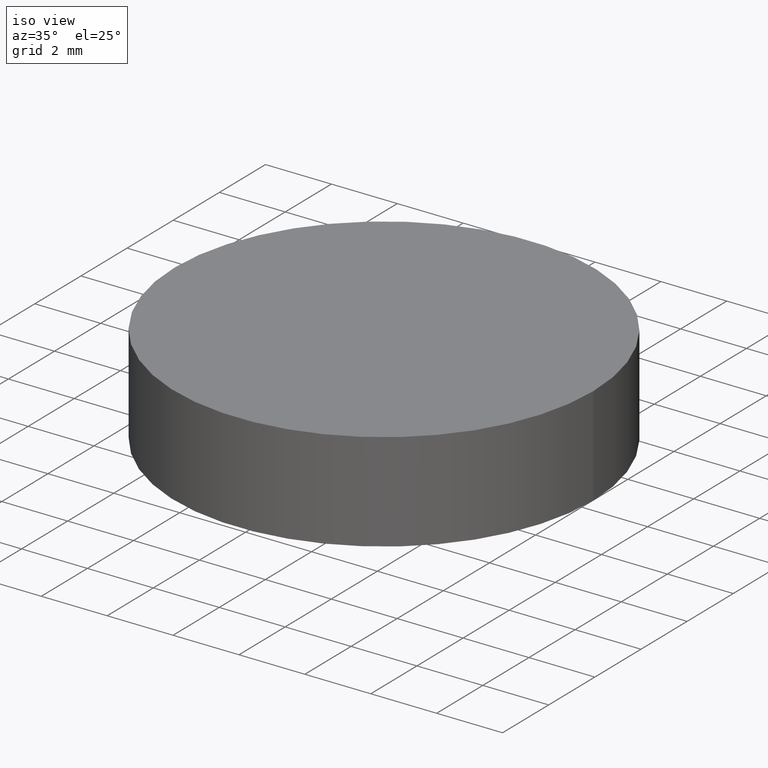
[diagram: clean part render]
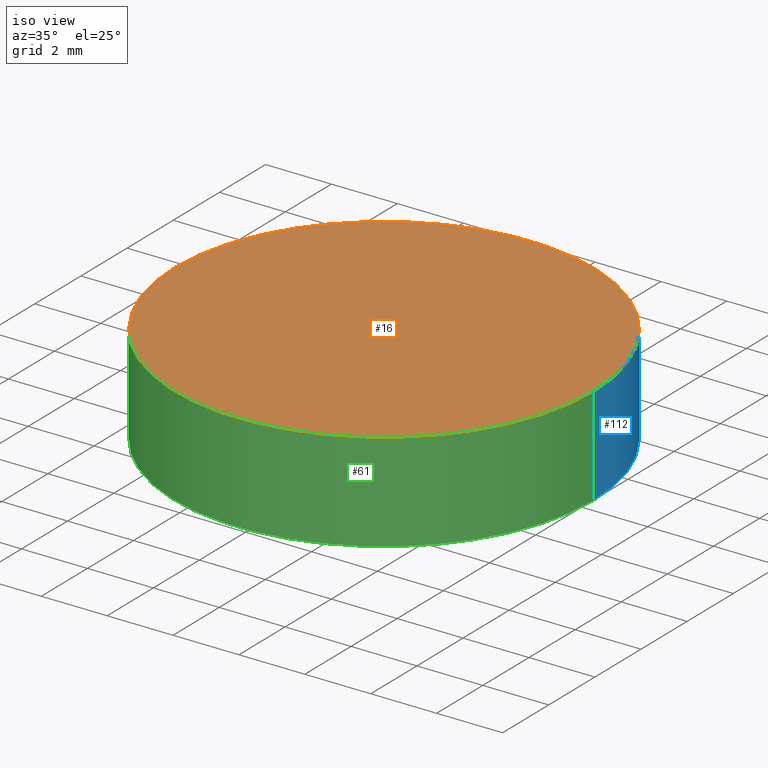
[diagram: same view with three faces highlighted in distinct colors, each labeled with its STEP entity id]
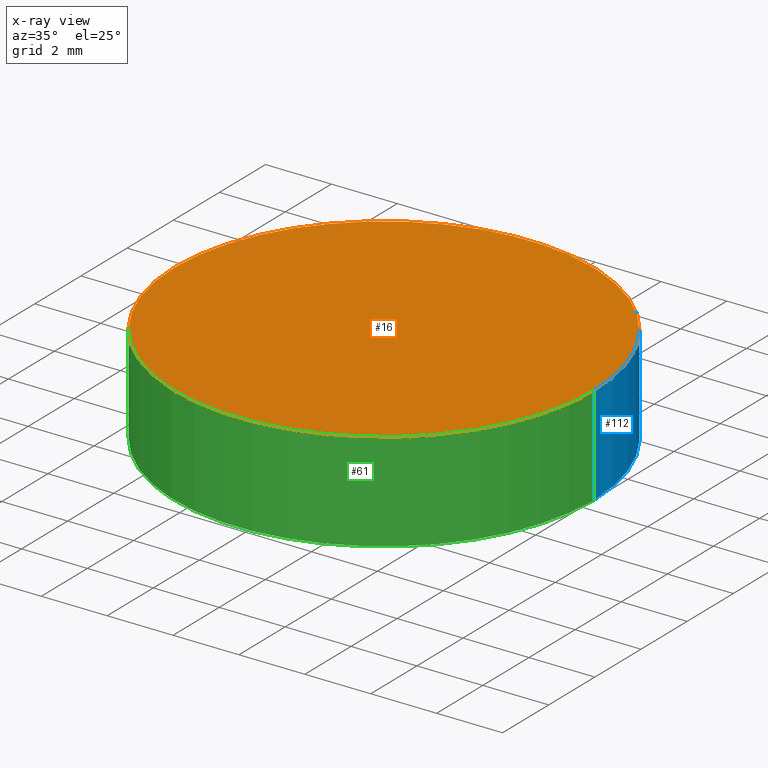
[diagram: x-ray of the same camera — body ghosted, the three highlighted faces saturated]
A machine part, iso view with three faces highlighted in distinct colors.
The next image is the same camera in x-ray (body ghosted, the three faces saturated) — at least one of them is partly hidden behind the body in this view.
Their STEP definitions:

[orange] entity #16 — the highlighted planar face has unit normal (0, 0, 1).
#8 = FACE_OUTER_BOUND ( 'NONE', #101, .T. ) ;
#12 = ORIENTED_EDGE ( 'NONE', *, *, #19, .T. ) ;
#16 = ADVANCED_FACE ( 'NONE', ( #8 ), #82, .T. ) ;
#19 = EDGE_CURVE ( 'NONE', #41, #75, #81, .T. ) ;
#32 = CIRCLE ( 'NONE', #119, 6.349999999999999600 ) ;
#41 = VERTEX_POINT ( 'NONE', #49 ) ;
#44 = DIRECTION ( 'NONE',  ( 1.000000000000000000, 0.0000000000000000000, 0.0000000000000000000 ) ) ;
#48 = AXIS2_PLACEMENT_3D ( 'NONE', #108, #93, #59 ) ;
#49 = CARTESIAN_POINT ( 'NONE',  ( 6.349999999999999600, 7.776507174585692200E-016, 3.000000000000000000 ) ) ;
#59 = DIRECTION ( 'NONE',  ( 1.000000000000000000, 0.0000000000000000000, -0.0000000000000000000 ) ) ;
#64 = AXIS2_PLACEMENT_3D ( 'NONE', #125, #91, #44 ) ;
#75 = VERTEX_POINT ( 'NONE', #109 ) ;
#76 = ORIENTED_EDGE ( 'NONE', *, *, #86, .T. ) ;
#81 = CIRCLE ( 'NONE', #64, 6.349999999999999600 ) ;
#82 = PLANE ( 'NONE',  #48 ) ;
#86 = EDGE_CURVE ( 'NONE', #75, #41, #32, .T. ) ;
#91 = DIRECTION ( 'NONE',  ( 0.0000000000000000000, 0.0000000000000000000, 1.000000000000000000 ) ) ;
#93 = DIRECTION ( 'NONE',  ( 0.0000000000000000000, 0.0000000000000000000, 1.000000000000000000 ) ) ;
#101 = EDGE_LOOP ( 'NONE', ( #76, #12 ) ) ;
#108 = CARTESIAN_POINT ( 'NONE',  ( 0.0000000000000000000, 0.0000000000000000000, 3.000000000000000000 ) ) ;
#109 = CARTESIAN_POINT ( 'NONE',  ( -6.349999999999999600, 0.0000000000000000000, 3.000000000000000000 ) ) ;
#111 = CARTESIAN_POINT ( 'NONE',  ( 0.0000000000000000000, 0.0000000000000000000, 3.000000000000000000 ) ) ;
#119 = AXIS2_PLACEMENT_3D ( 'NONE', #111, #130, #131 ) ;
#125 = CARTESIAN_POINT ( 'NONE',  ( 0.0000000000000000000, 0.0000000000000000000, 3.000000000000000000 ) ) ;
#130 = DIRECTION ( 'NONE',  ( 0.0000000000000000000, 0.0000000000000000000, 1.000000000000000000 ) ) ;
#131 = DIRECTION ( 'NONE',  ( 1.000000000000000000, 0.0000000000000000000, 0.0000000000000000000 ) ) ;

[blue] entity #112 — the highlighted cylindrical surface (partial cylindrical patch) has radius 6.35 mm, axis along (-0, -0, -1).
#15 = CARTESIAN_POINT ( 'NONE',  ( -6.349999999999999600, 0.0000000000000000000, 3.000000000000000000 ) ) ;
#17 = LINE ( 'NONE', #15, #28 ) ;
#19 = EDGE_CURVE ( 'NONE', #41, #75, #81, .T. ) ;
#20 = VERTEX_POINT ( 'NONE', #140 ) ;
#23 = AXIS2_PLACEMENT_3D ( 'NONE', #70, #36, #34 ) ;
#25 = EDGE_CURVE ( 'NONE', #20, #115, #132, .T. ) ;
#26 = DIRECTION ( 'NONE',  ( 0.0000000000000000000, 0.0000000000000000000, 1.000000000000000000 ) ) ;
#28 = VECTOR ( 'NONE', #78, 1000.000000000000000 ) ;
#30 = CARTESIAN_POINT ( 'NONE',  ( -6.349999999999999600, 0.0000000000000000000, 0.0000000000000000000 ) ) ;
#34 = DIRECTION ( 'NONE',  ( -1.000000000000000000, 0.0000000000000000000, 0.0000000000000000000 ) ) ;
#36 = DIRECTION ( 'NONE',  ( -0.0000000000000000000, -0.0000000000000000000, -1.000000000000000000 ) ) ;
#37 = ORIENTED_EDGE ( 'NONE', *, *, #19, .F. ) ;
#41 = VERTEX_POINT ( 'NONE', #49 ) ;
#44 = DIRECTION ( 'NONE',  ( 1.000000000000000000, 0.0000000000000000000, 0.0000000000000000000 ) ) ;
#49 = CARTESIAN_POINT ( 'NONE',  ( 6.349999999999999600, 7.776507174585692200E-016, 3.000000000000000000 ) ) ;
#53 = CARTESIAN_POINT ( 'NONE',  ( 6.349999999999999600, 7.776507174585692200E-016, 3.000000000000000000 ) ) ;
#60 = FACE_OUTER_BOUND ( 'NONE', #66, .T. ) ;
#64 = AXIS2_PLACEMENT_3D ( 'NONE', #125, #91, #44 ) ;
#66 = EDGE_LOOP ( 'NONE', ( #37, #124, #126, #121 ) ) ;
#70 = CARTESIAN_POINT ( 'NONE',  ( 0.0000000000000000000, 0.0000000000000000000, 3.000000000000000000 ) ) ;
#75 = VERTEX_POINT ( 'NONE', #109 ) ;
#78 = DIRECTION ( 'NONE',  ( -0.0000000000000000000, -0.0000000000000000000, -1.000000000000000000 ) ) ;
#80 = DIRECTION ( 'NONE',  ( -0.0000000000000000000, -0.0000000000000000000, -1.000000000000000000 ) ) ;
#81 = CIRCLE ( 'NONE', #64, 6.349999999999999600 ) ;
#85 = LINE ( 'NONE', #53, #90 ) ;
#87 = AXIS2_PLACEMENT_3D ( 'NONE', #100, #26, #120 ) ;
#90 = VECTOR ( 'NONE', #80, 1000.000000000000000 ) ;
#91 = DIRECTION ( 'NONE',  ( 0.0000000000000000000, 0.0000000000000000000, 1.000000000000000000 ) ) ;
#99 = EDGE_CURVE ( 'NONE', #41, #20, #85, .T. ) ;
#100 = CARTESIAN_POINT ( 'NONE',  ( 0.0000000000000000000, 0.0000000000000000000, 0.0000000000000000000 ) ) ;
#104 = CYLINDRICAL_SURFACE ( 'NONE', #23, 6.349999999999999600 ) ;
#109 = CARTESIAN_POINT ( 'NONE',  ( -6.349999999999999600, 0.0000000000000000000, 3.000000000000000000 ) ) ;
#112 = ADVANCED_FACE ( 'NONE', ( #60 ), #104, .T. ) ;
#115 = VERTEX_POINT ( 'NONE', #30 ) ;
#120 = DIRECTION ( 'NONE',  ( 1.000000000000000000, 0.0000000000000000000, 0.0000000000000000000 ) ) ;
#121 = ORIENTED_EDGE ( 'NONE', *, *, #127, .F. ) ;
#124 = ORIENTED_EDGE ( 'NONE', *, *, #99, .T. ) ;
#125 = CARTESIAN_POINT ( 'NONE',  ( 0.0000000000000000000, 0.0000000000000000000, 3.000000000000000000 ) ) ;
#126 = ORIENTED_EDGE ( 'NONE', *, *, #25, .T. ) ;
#127 = EDGE_CURVE ( 'NONE', #75, #115, #17, .T. ) ;
#132 = CIRCLE ( 'NONE', #87, 6.349999999999999600 ) ;
#140 = CARTESIAN_POINT ( 'NONE',  ( 6.349999999999999600, 7.776507174585692200E-016, 0.0000000000000000000 ) ) ;

[green] entity #61 — the highlighted cylindrical surface (partial cylindrical patch) has radius 6.35 mm, axis along (-0, -0, -1).
#5 = ORIENTED_EDGE ( 'NONE', *, *, #99, .F. ) ;
#7 = EDGE_LOOP ( 'NONE', ( #5, #45, #98, #96 ) ) ;
#9 = CARTESIAN_POINT ( 'NONE',  ( 0.0000000000000000000, 0.0000000000000000000, 3.000000000000000000 ) ) ;
#15 = CARTESIAN_POINT ( 'NONE',  ( -6.349999999999999600, 0.0000000000000000000, 3.000000000000000000 ) ) ;
#17 = LINE ( 'NONE', #15, #28 ) ;
#18 = CARTESIAN_POINT ( 'NONE',  ( 0.0000000000000000000, 0.0000000000000000000, 0.0000000000000000000 ) ) ;
#20 = VERTEX_POINT ( 'NONE', #140 ) ;
#21 = CIRCLE ( 'NONE', #79, 6.349999999999999600 ) ;
#28 = VECTOR ( 'NONE', #78, 1000.000000000000000 ) ;
#29 = FACE_OUTER_BOUND ( 'NONE', #7, .T. ) ;
#30 = CARTESIAN_POINT ( 'NONE',  ( -6.349999999999999600, 0.0000000000000000000, 0.0000000000000000000 ) ) ;
#32 = CIRCLE ( 'NONE', #119, 6.349999999999999600 ) ;
#39 = AXIS2_PLACEMENT_3D ( 'NONE', #9, #58, #118 ) ;
#41 = VERTEX_POINT ( 'NONE', #49 ) ;
#45 = ORIENTED_EDGE ( 'NONE', *, *, #86, .F. ) ;
#49 = CARTESIAN_POINT ( 'NONE',  ( 6.349999999999999600, 7.776507174585692200E-016, 3.000000000000000000 ) ) ;
#51 = DIRECTION ( 'NONE',  ( 0.0000000000000000000, 0.0000000000000000000, 1.000000000000000000 ) ) ;
#53 = CARTESIAN_POINT ( 'NONE',  ( 6.349999999999999600, 7.776507174585692200E-016, 3.000000000000000000 ) ) ;
#58 = DIRECTION ( 'NONE',  ( -0.0000000000000000000, -0.0000000000000000000, -1.000000000000000000 ) ) ;
#61 = ADVANCED_FACE ( 'NONE', ( #29 ), #113, .T. ) ;
#75 = VERTEX_POINT ( 'NONE', #109 ) ;
#78 = DIRECTION ( 'NONE',  ( -0.0000000000000000000, -0.0000000000000000000, -1.000000000000000000 ) ) ;
#79 = AXIS2_PLACEMENT_3D ( 'NONE', #18, #51, #114 ) ;
#80 = DIRECTION ( 'NONE',  ( -0.0000000000000000000, -0.0000000000000000000, -1.000000000000000000 ) ) ;
#85 = LINE ( 'NONE', #53, #90 ) ;
#86 = EDGE_CURVE ( 'NONE', #75, #41, #32, .T. ) ;
#90 = VECTOR ( 'NONE', #80, 1000.000000000000000 ) ;
#94 = EDGE_CURVE ( 'NONE', #115, #20, #21, .T. ) ;
#96 = ORIENTED_EDGE ( 'NONE', *, *, #94, .T. ) ;
#98 = ORIENTED_EDGE ( 'NONE', *, *, #127, .T. ) ;
#99 = EDGE_CURVE ( 'NONE', #41, #20, #85, .T. ) ;
#109 = CARTESIAN_POINT ( 'NONE',  ( -6.349999999999999600, 0.0000000000000000000, 3.000000000000000000 ) ) ;
#111 = CARTESIAN_POINT ( 'NONE',  ( 0.0000000000000000000, 0.0000000000000000000, 3.000000000000000000 ) ) ;
#113 = CYLINDRICAL_SURFACE ( 'NONE', #39, 6.349999999999999600 ) ;
#114 = DIRECTION ( 'NONE',  ( 1.000000000000000000, 0.0000000000000000000, 0.0000000000000000000 ) ) ;
#115 = VERTEX_POINT ( 'NONE', #30 ) ;
#118 = DIRECTION ( 'NONE',  ( -1.000000000000000000, 0.0000000000000000000, 0.0000000000000000000 ) ) ;
#119 = AXIS2_PLACEMENT_3D ( 'NONE', #111, #130, #131 ) ;
#127 = EDGE_CURVE ( 'NONE', #75, #115, #17, .T. ) ;
#130 = DIRECTION ( 'NONE',  ( 0.0000000000000000000, 0.0000000000000000000, 1.000000000000000000 ) ) ;
#131 = DIRECTION ( 'NONE',  ( 1.000000000000000000, 0.0000000000000000000, 0.0000000000000000000 ) ) ;
#140 = CARTESIAN_POINT ( 'NONE',  ( 6.349999999999999600, 7.776507174585692200E-016, 0.0000000000000000000 ) ) ;